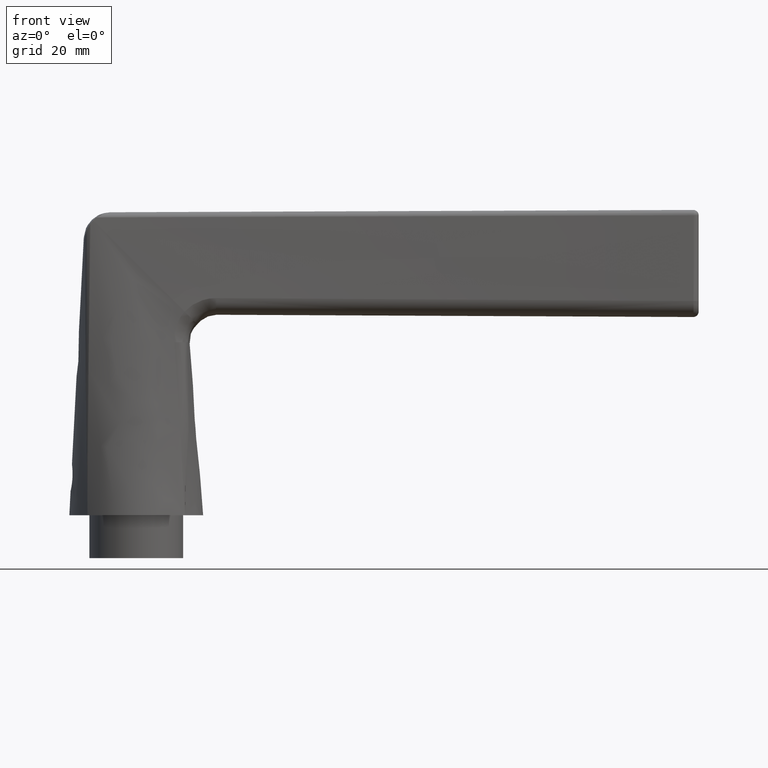
[diagram: clean part render]
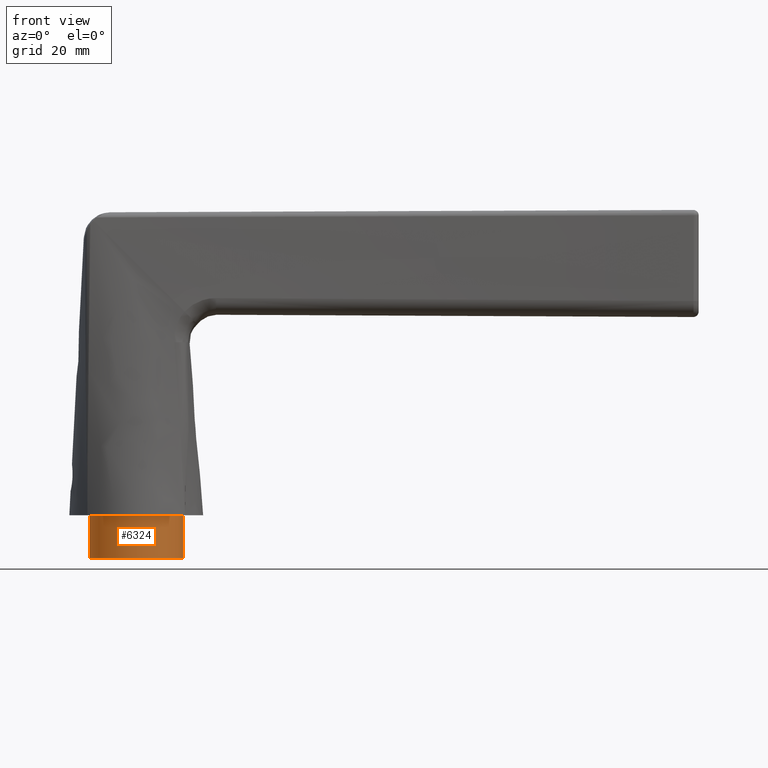
[diagram: same view with one face highlighted and labeled with its STEP entity id]
A machine part, front view. The second image highlights one B-rep face of the part: STEP entity #6324.
In plain terms, the highlighted cylindrical surface (partial cylindrical patch) has radius 8.75 mm, axis along (-0, -0, -1).
Its self-contained STEP definition (entity closure, byte-faithful):
#517 = CARTESIAN_POINT ( 'NONE',  ( 0.0000000000000000000, 0.0000000000000000000, 8.000000000000000000 ) ) ;
#1495 = DIRECTION ( 'NONE',  ( 1.000000000000000000, 0.0000000000000000000, 0.0000000000000000000 ) ) ;
#1585 = AXIS2_PLACEMENT_3D ( 'NONE', #517, #7518, #1495 ) ;
#2011 = CARTESIAN_POINT ( 'NONE',  ( 0.0000000000000000000, 0.0000000000000000000, 0.0000000000000000000 ) ) ;
#2399 = CARTESIAN_POINT ( 'NONE',  ( 0.0000000000000000000, 0.0000000000000000000, 8.000000000000000000 ) ) ;
#2427 = EDGE_CURVE ( 'NONE', #10504, #12125, #11765, .T. ) ;
#2643 = CIRCLE ( 'NONE', #1585, 8.750000000000001800 ) ;
#2748 = CARTESIAN_POINT ( 'NONE',  ( 8.750000000000001800, 1.071565949253934300E-015, 8.000000000000000000 ) ) ;
#3026 = DIRECTION ( 'NONE',  ( 1.000000000000000000, 0.0000000000000000000, 0.0000000000000000000 ) ) ;
#3690 = CARTESIAN_POINT ( 'NONE',  ( 8.750000000000001800, 1.071565949253934300E-015, 0.0000000000000000000 ) ) ;
#4703 = AXIS2_PLACEMENT_3D ( 'NONE', #2011, #8902, #3026 ) ;
#4714 = ORIENTED_EDGE ( 'NONE', *, *, #7893, .F. ) ;
#4746 = EDGE_CURVE ( 'NONE', #6460, #12125, #12029, .T. ) ;
#6115 = AXIS2_PLACEMENT_3D ( 'NONE', #2399, #8331, #11923 ) ;
#6324 = ADVANCED_FACE ( 'NONE', ( #10339 ), #12439, .T. ) ;
#6460 = VERTEX_POINT ( 'NONE', #2748 ) ;
#6577 = DIRECTION ( 'NONE',  ( -0.0000000000000000000, -0.0000000000000000000, -1.000000000000000000 ) ) ;
#6656 = LINE ( 'NONE', #12086, #11535 ) ;
#6691 = CARTESIAN_POINT ( 'NONE',  ( -8.750000000000001800, 0.0000000000000000000, 0.0000000000000000000 ) ) ;
#7093 = DIRECTION ( 'NONE',  ( -0.0000000000000000000, -0.0000000000000000000, -1.000000000000000000 ) ) ;
#7518 = DIRECTION ( 'NONE',  ( 0.0000000000000000000, 0.0000000000000000000, 1.000000000000000000 ) ) ;
#7893 = EDGE_CURVE ( 'NONE', #11773, #6460, #2643, .T. ) ;
#8054 = CARTESIAN_POINT ( 'NONE',  ( 8.750000000000001800, 1.071565949253934300E-015, 8.000000000000000000 ) ) ;
#8230 = EDGE_LOOP ( 'NONE', ( #8527, #4714, #9165, #11313 ) ) ;
#8331 = DIRECTION ( 'NONE',  ( -0.0000000000000000000, -0.0000000000000000000, -1.000000000000000000 ) ) ;
#8527 = ORIENTED_EDGE ( 'NONE', *, *, #4746, .F. ) ;
#8902 = DIRECTION ( 'NONE',  ( 0.0000000000000000000, 0.0000000000000000000, 1.000000000000000000 ) ) ;
#9074 = VECTOR ( 'NONE', #7093, 1000.000000000000000 ) ;
#9165 = ORIENTED_EDGE ( 'NONE', *, *, #11764, .T. ) ;
#9343 = CARTESIAN_POINT ( 'NONE',  ( -8.750000000000001800, 0.0000000000000000000, 8.000000000000000000 ) ) ;
#10339 = FACE_OUTER_BOUND ( 'NONE', #8230, .T. ) ;
#10504 = VERTEX_POINT ( 'NONE', #6691 ) ;
#11313 = ORIENTED_EDGE ( 'NONE', *, *, #2427, .T. ) ;
#11535 = VECTOR ( 'NONE', #6577, 1000.000000000000000 ) ;
#11764 = EDGE_CURVE ( 'NONE', #11773, #10504, #6656, .T. ) ;
#11765 = CIRCLE ( 'NONE', #4703, 8.750000000000001800 ) ;
#11773 = VERTEX_POINT ( 'NONE', #9343 ) ;
#11923 = DIRECTION ( 'NONE',  ( -1.000000000000000000, 0.0000000000000000000, 0.0000000000000000000 ) ) ;
#12029 = LINE ( 'NONE', #8054, #9074 ) ;
#12086 = CARTESIAN_POINT ( 'NONE',  ( -8.750000000000001800, 0.0000000000000000000, 8.000000000000000000 ) ) ;
#12125 = VERTEX_POINT ( 'NONE', #3690 ) ;
#12439 = CYLINDRICAL_SURFACE ( 'NONE', #6115, 8.750000000000001800 ) ;